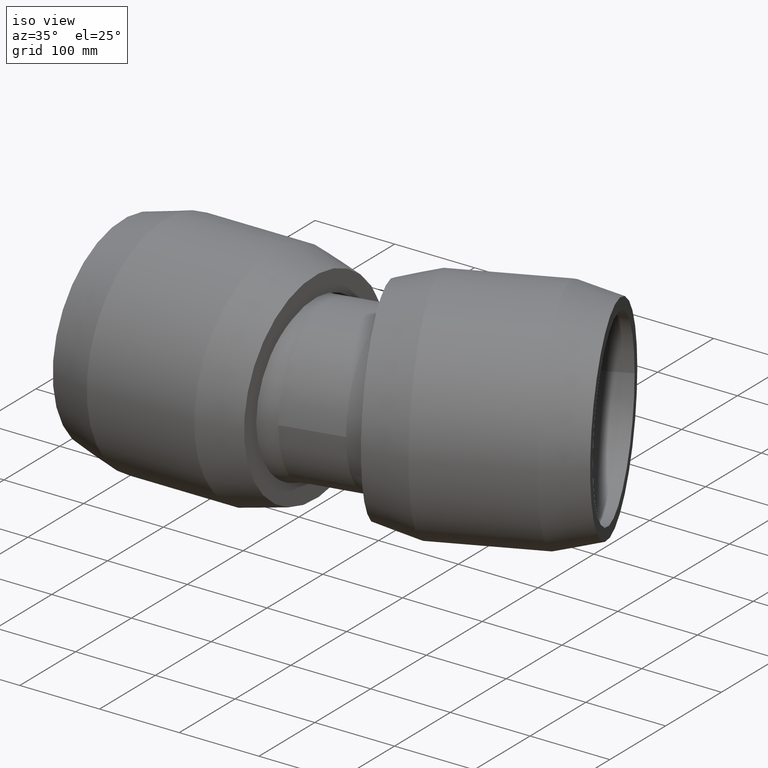
[diagram: clean part render]
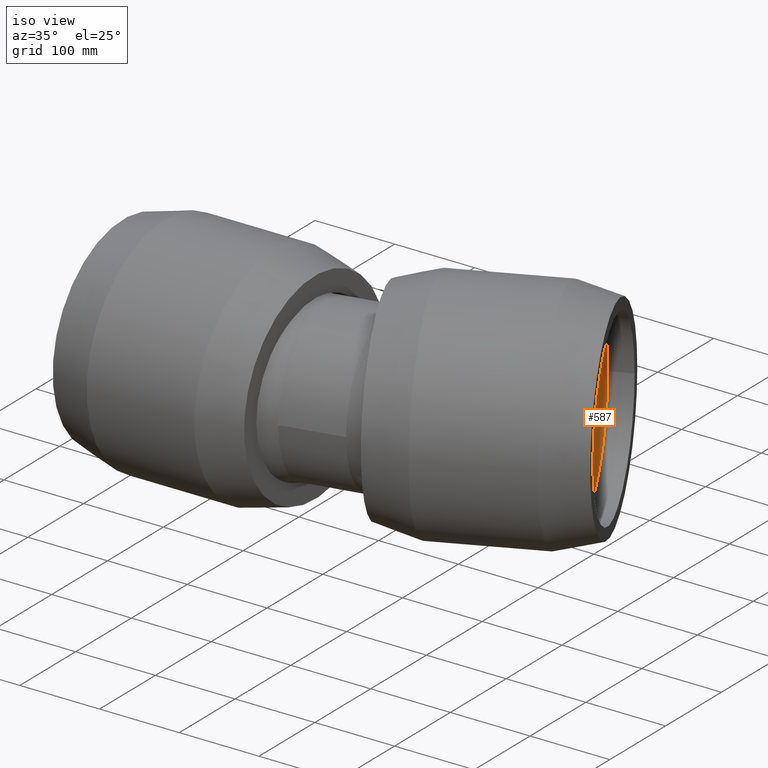
[diagram: same view with one face highlighted and labeled with its STEP entity id]
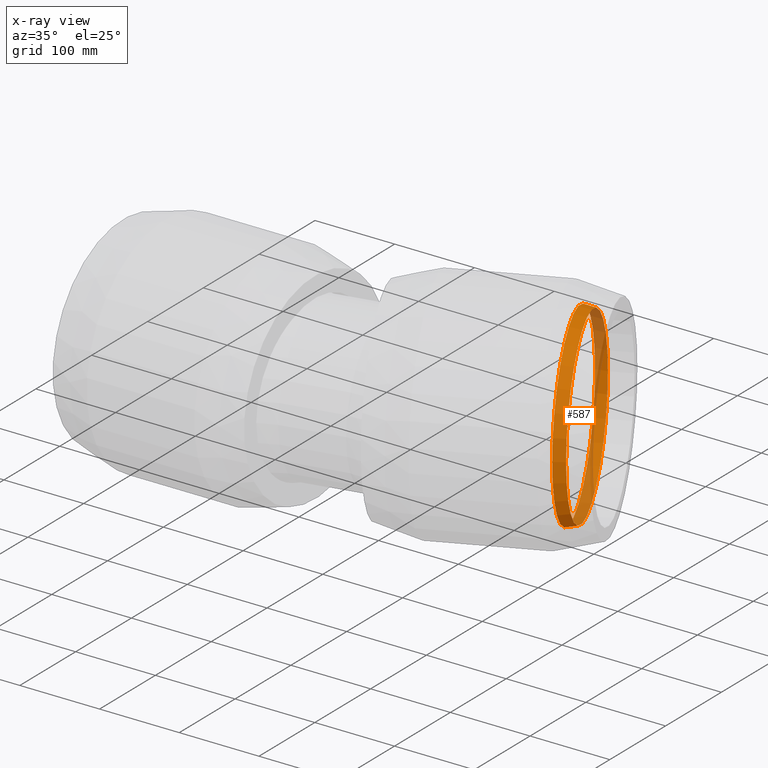
[diagram: x-ray of the same camera — body ghosted, the highlighted face saturated]
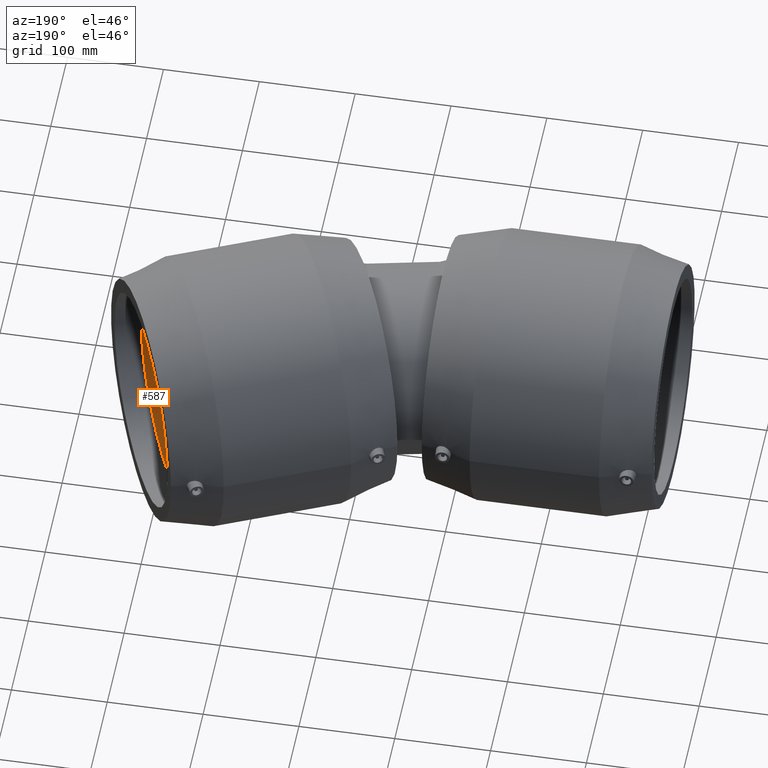
[diagram: same view with one face highlighted and labeled with its STEP entity id]
A machine part, iso view. The second image highlights one B-rep face of the part: STEP entity #587.
The next image is the same camera in x-ray: the body ghosted, the highlighted face saturated — about 27% of this face is hidden behind the body in this view.
A second angle (auxiliary view) of the same face is appended — the face is thin or edge-on in the first view.
In plain terms, the highlighted conical surface has half-angle 12 deg.
Its self-contained STEP definition (entity closure, byte-faithful):
#23=CONICAL_SURFACE('',#684,113.98789593169,11.9999999999999);
#108=FACE_BOUND('',#255,.T.);
#159=FACE_OUTER_BOUND('',#254,.T.);
#254=EDGE_LOOP('',(#530));
#255=EDGE_LOOP('',(#531));
#315=CIRCLE('',#683,115.47579186338);
#316=CIRCLE('',#685,112.5);
#367=VERTEX_POINT('',#1373);
#368=VERTEX_POINT('',#1376);
#423=EDGE_CURVE('',#367,#367,#315,.T.);
#424=EDGE_CURVE('',#368,#368,#316,.T.);
#530=ORIENTED_EDGE('',*,*,#424,.T.);
#531=ORIENTED_EDGE('',*,*,#423,.F.);
#587=ADVANCED_FACE('',(#159,#108),#23,.F.);
#683=AXIS2_PLACEMENT_3D('',#1374,#873,#874);
#684=AXIS2_PLACEMENT_3D('',#1375,#875,#876);
#685=AXIS2_PLACEMENT_3D('',#1377,#877,#878);
#873=DIRECTION('center_axis',(0.913545457642601,0.406736643075801,1.19788532833232E-16));
#874=DIRECTION('ref_axis',(1.19788532833232E-16,2.54618386665284E-17,-1.));
#875=DIRECTION('center_axis',(-0.913545457642601,-0.406736643075801,-1.19788532833232E-16));
#876=DIRECTION('ref_axis',(-0.406736643075801,0.913545457642601,-2.54618386665283E-17));
#877=DIRECTION('center_axis',(0.913545457642601,0.406736643075801,1.19788532833232E-16));
#878=DIRECTION('ref_axis',(1.19788532833232E-16,2.54618386665284E-17,-1.));
#1373=CARTESIAN_POINT('',(329.936535273944,202.185379180792,2.55369522863274E-14));
#1374=CARTESIAN_POINT('Origin',(376.904771212975,96.6929940563183,2.84771782686424E-14));
#1375=CARTESIAN_POINT('Origin',(383.299589416473,99.5401505578489,2.93156979984751E-14));
#1376=CARTESIAN_POINT('',(343.936535273944,205.161171044172,2.72897608783232E-14));
#1377=CARTESIAN_POINT('Origin',(389.694407619972,102.387307059379,3.01542177283077E-14));